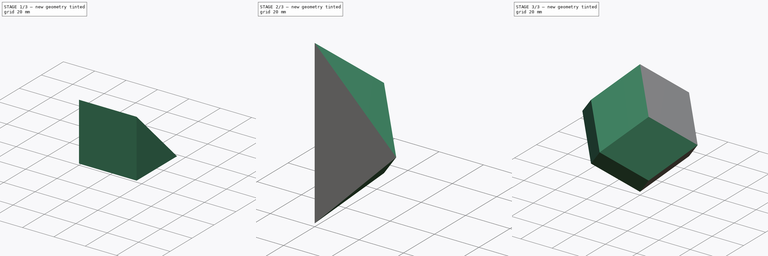
[diagram: build sequence overview — one tinted view per stage of 3, left to right]
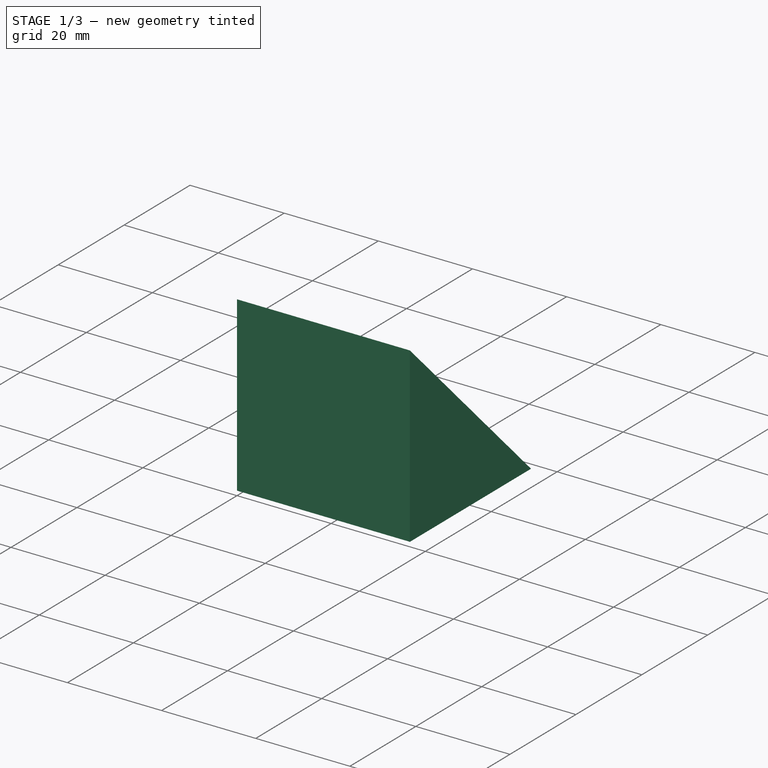
[diagram: stage 1 of 3 — iso view after this stage's code; geometry added in this stage tinted green]
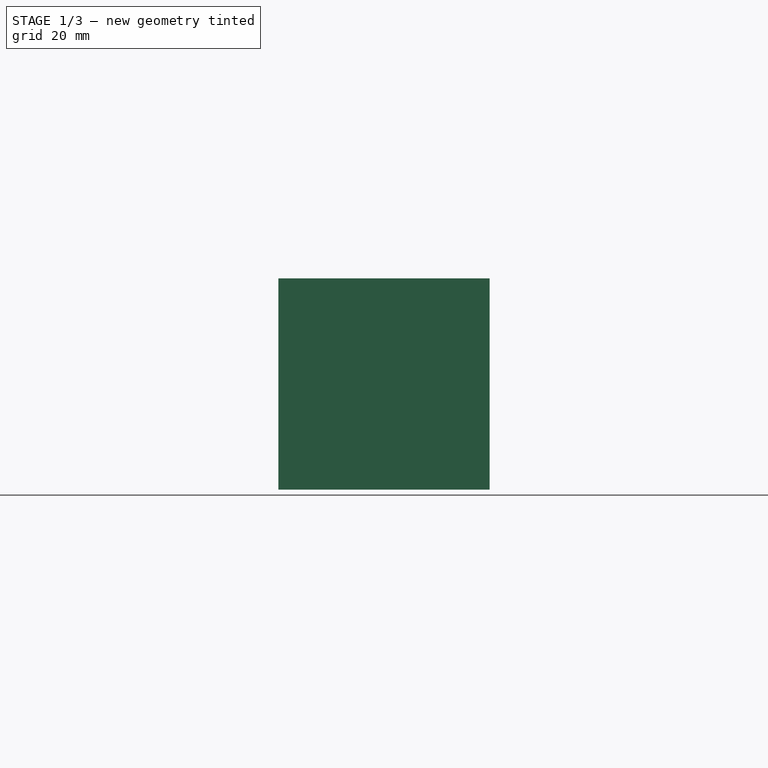
[diagram: stage 1 of 3 — front view after this stage's code; geometry added in this stage tinted green]
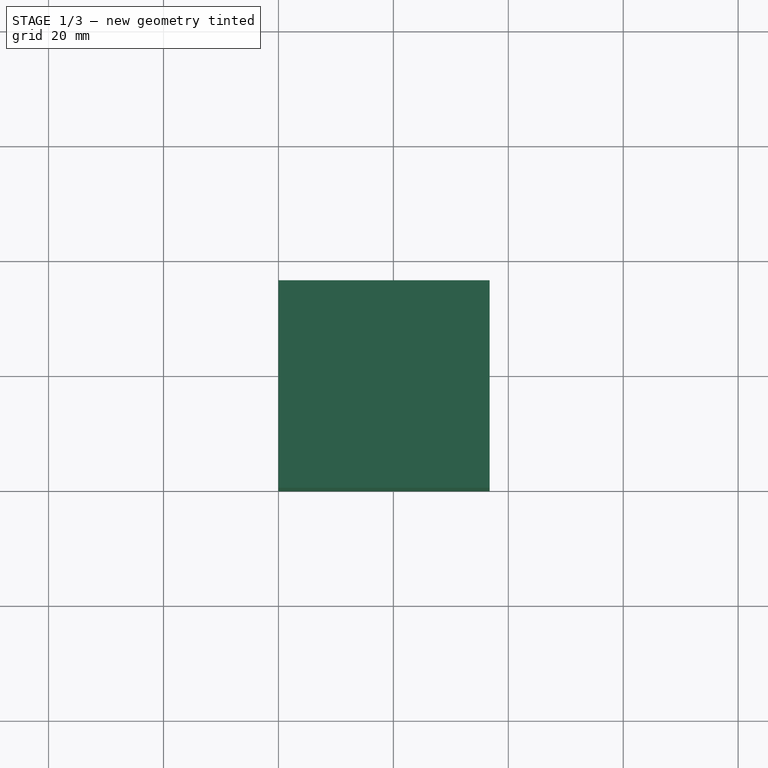
[diagram: stage 1 of 3 — top view after this stage's code; geometry added in this stage tinted green]
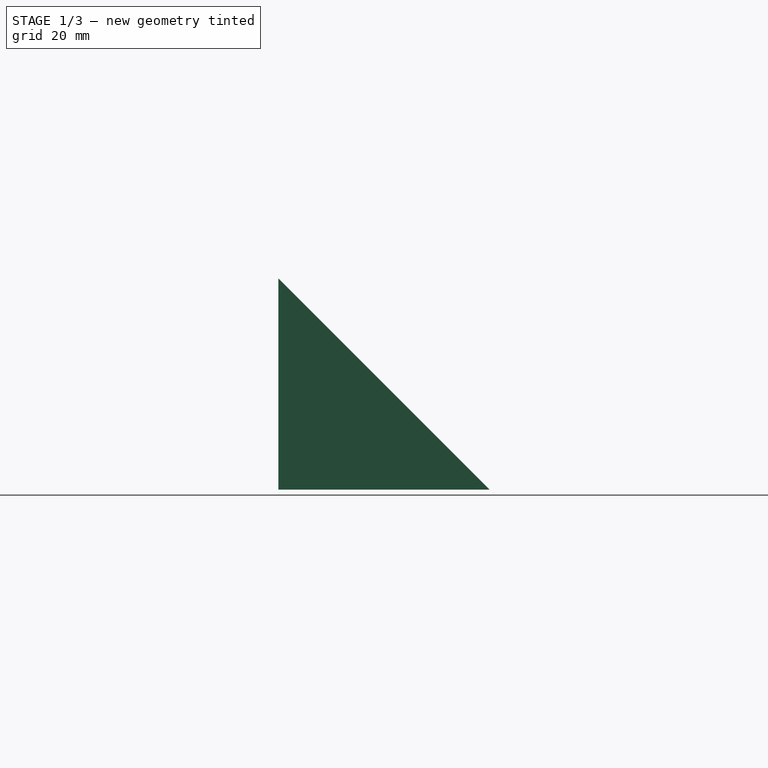
[diagram: stage 1 of 3 — right view after this stage's code; geometry added in this stage tinted green]
FCSTD DOCUMENT  (FreeCAD 1.0R39319 (Git))
Label: rhombic-dodecahedron
License: All rights reserved
LicenseURL: https://en.wikipedia.org/wiki/All_rights_reserved
objects: PartDesign::Plane×4, PartDesign::Pocket×3, PartDesign::Mirrored×3, Sketcher::SketchObject×2, PartDesign::Body×2, PartDesign::AdditiveBox×1, App::VarSet×1
note: 28 computed .brp shape members not serialized (recipe doc carries the construction recipe); baked Part::Feature solids carry a one-line shape summary decoded from their .brp

FEATURE [PartDesign::AdditiveBox] Box
  AttacherType = Attacher::AttachEngine3D
  Height = 36.7423
  Length = 36.7423
  Refine = true
  Suppressed = false
  Width = 36.7423
  expr: Height = <<Rhombus>>.<<Rhombus>>.Constraints.long / sqrt(2)
  expr: Length = <<Rhombus>>.<<Rhombus>>.Constraints.long / sqrt(2)
  expr: Width = <<Rhombus>>.<<Rhombus>>.Constraints.long / sqrt(2)
FEATURE [PartDesign::Plane] DatumPlane  label="DatumPlaneX"
  AttachmentOffset = pos=(0,0,0) rot=(1,0,0;0.785398rad)
  AttachmentSupport = -> [Box]
  Length = 90.9624
  MapMode = 47
  Placement = pos=(36.7423,36.7423,36.7423) rot=(0,0.92388,-0.382683;3.14159rad)
  ResizeMode = 0
  Width = 121.401
FEATURE [PartDesign::Plane] DatumPlane001  label="DatumPlaneY"
  AttachmentOffset = pos=(0,0,0) rot=(-1,0,0;0.785398rad)
  AttachmentSupport = -> [Box]
  Length = 90.9624
  MapMode = 47
  Placement = pos=(36.7423,36.7423,36.7423) rot=(0.678598,-0.678598,-0.281085;2.59356rad)
  ResizeMode = 0
  Width = 121.401
FEATURE [PartDesign::Plane] DatumPlane002  label="DatumPlaneZ"
  AttachmentOffset = pos=(0,0,0) rot=(1,0,0;0.785398rad)
  AttachmentSupport = -> [Box]
  Length = 90.9624
  MapMode = 47
  Placement = pos=(36.7423,36.7423,36.7423) rot=(0.678598,0.281085,-0.678598;2.59356rad)
  ResizeMode = 0
  Width = 121.401
FEATURE [App::VarSet] VarSet
  BasePiece = 30
FEATURE [PartDesign::Pocket] Pocket  label="PocketX"
  BaseFeature = -> Box
  Direction = (0,0.707107,0.707107)
  Length = 25.9808
  Length2 = 5
  Profile = -> DatumPlane
  Refine = true
  Reversed = true
  Suppressed = false
  Type = 0
  expr: Length = <<Rhombus>>.<<Rhombus>>.Constraints.long * 0.5
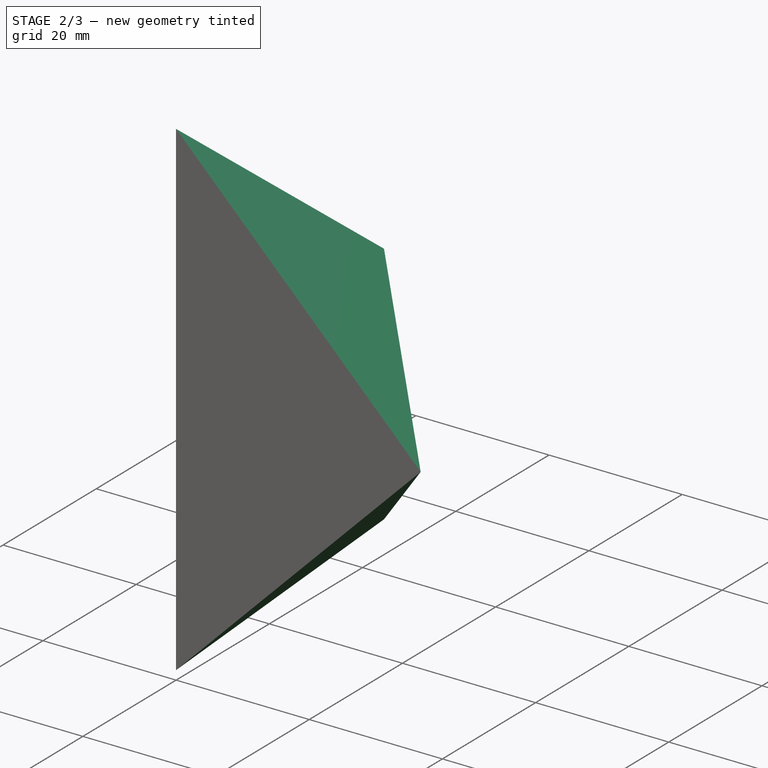
[diagram: stage 2 of 3 — iso view after this stage's code; geometry added in this stage tinted green]
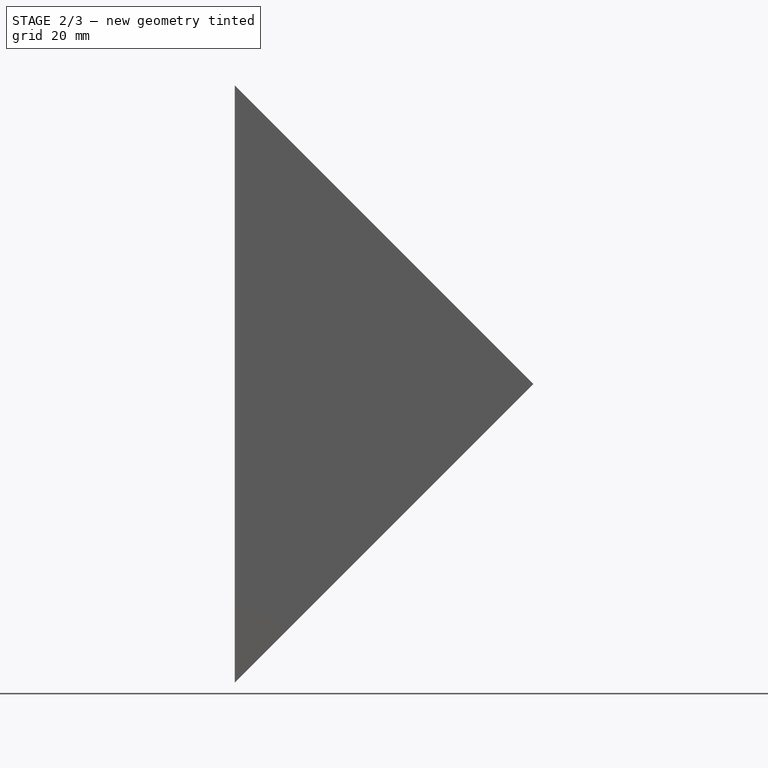
[diagram: stage 2 of 3 — front view after this stage's code; geometry added in this stage tinted green]
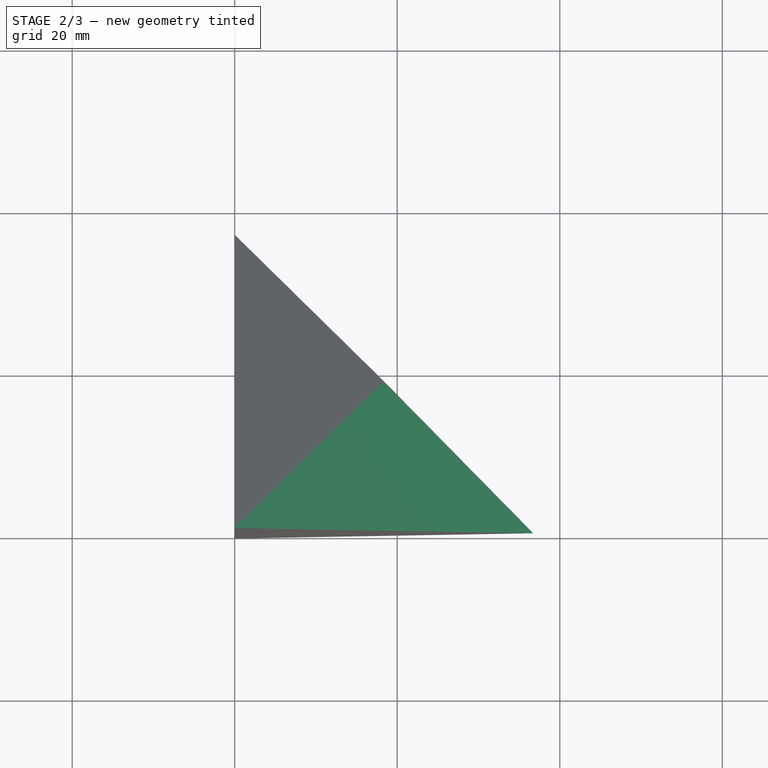
[diagram: stage 2 of 3 — top view after this stage's code; geometry added in this stage tinted green]
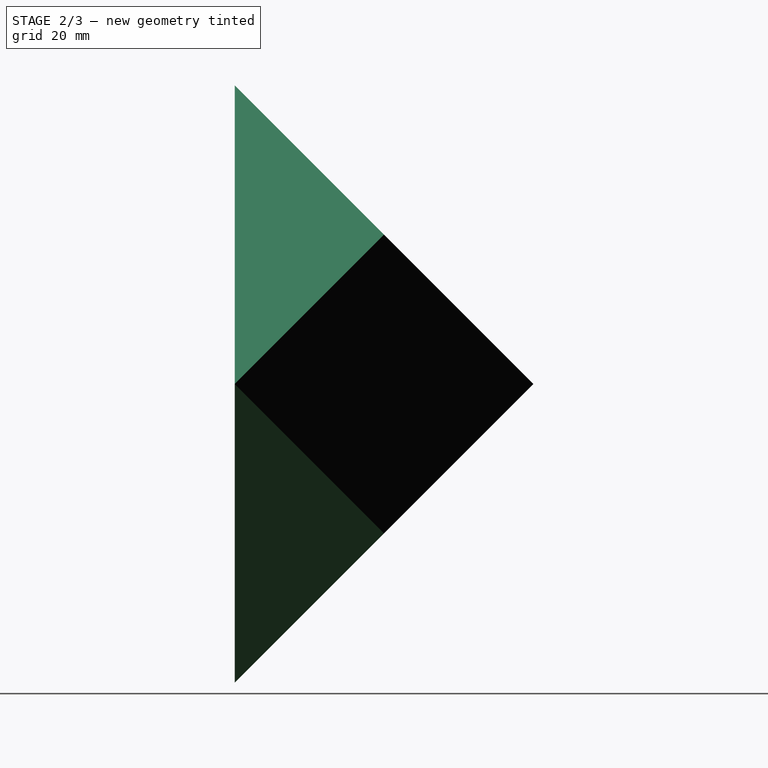
[diagram: stage 2 of 3 — right view after this stage's code; geometry added in this stage tinted green]
FEATURE [PartDesign::Pocket] Pocket001  label="PocketY"
  BaseFeature = -> Pocket
  Direction = (0.707107,2e-16,0.707107)
  Length = 25.9808
  Length2 = 5
  Profile = -> DatumPlane001
  Refine = true
  Reversed = true
  Suppressed = false
  Type = 0
  expr: Length = <<Rhombus>>.<<Rhombus>>.Constraints.long * 0.5
FEATURE [PartDesign::Pocket] Pocket002  label="PocketZ"
  BaseFeature = -> Pocket001
  Direction = (0.707107,0.707107,0)
  Length = 25.9808
  Length2 = 5
  Profile = -> DatumPlane002
  Refine = true
  Reversed = true
  Suppressed = false
  Type = 0
  expr: Length = <<Rhombus>>.<<Rhombus>>.Constraints.long * 0.5
FEATURE [PartDesign::Mirrored] Mirrored  label="MirroredXY"
  BaseFeature = -> Pocket002
  MirrorPlane = -> XY_Plane
  Refine = true
  Suppressed = false
  TransformMode = 1
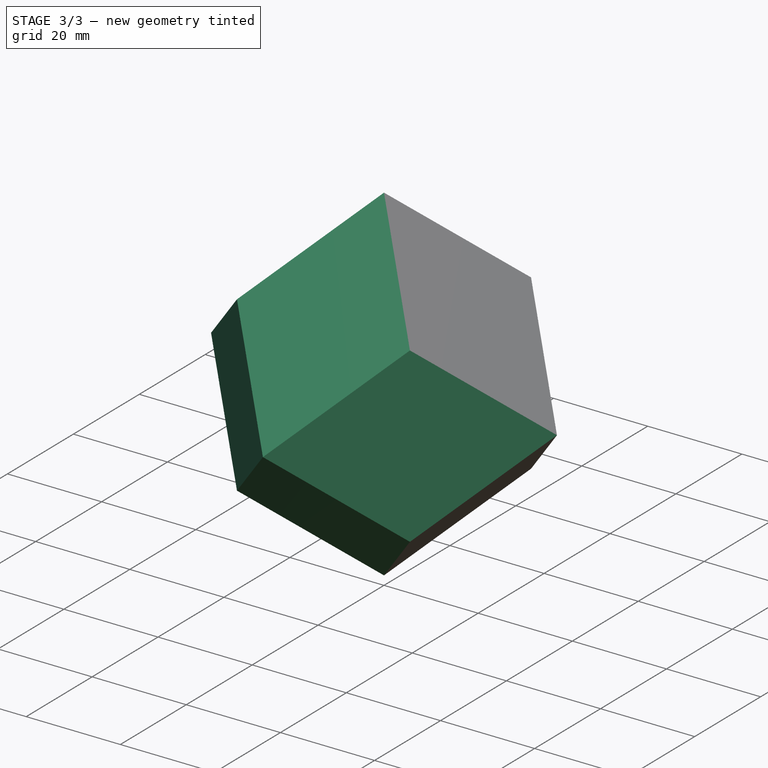
[diagram: stage 3 of 3 — iso view after this stage's code; geometry added in this stage tinted green]
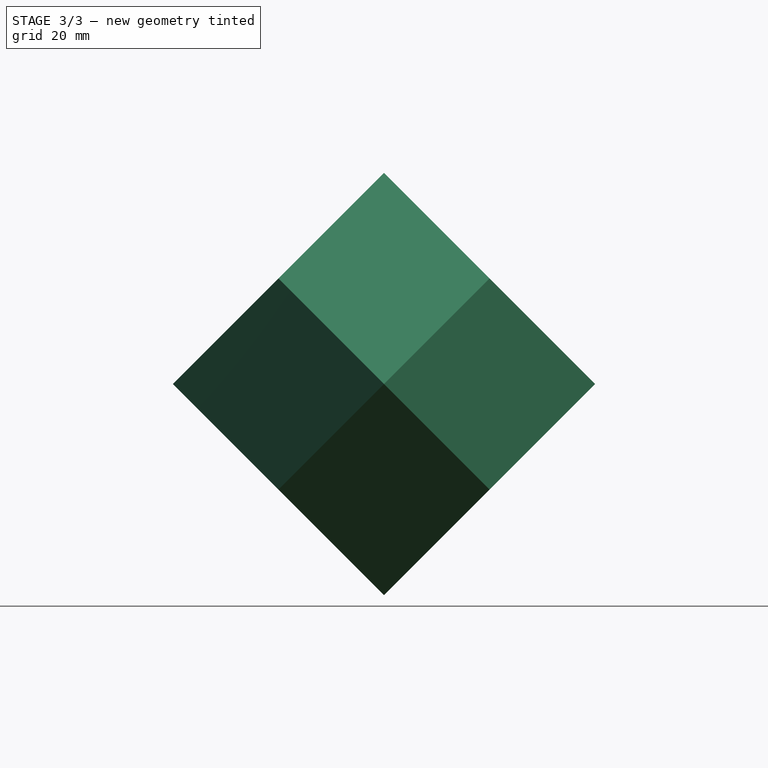
[diagram: stage 3 of 3 — front view after this stage's code; geometry added in this stage tinted green]
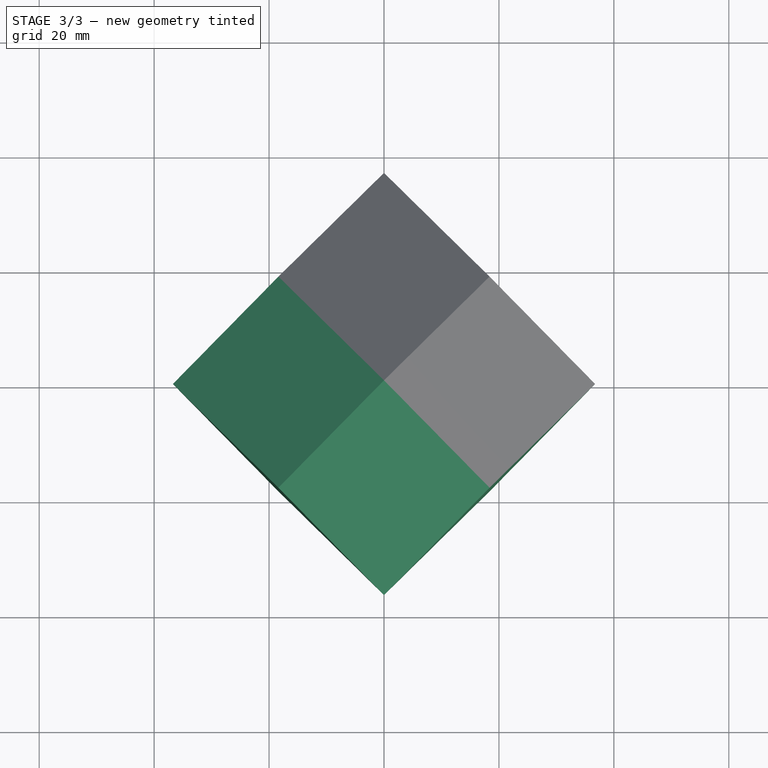
[diagram: stage 3 of 3 — top view after this stage's code; geometry added in this stage tinted green]
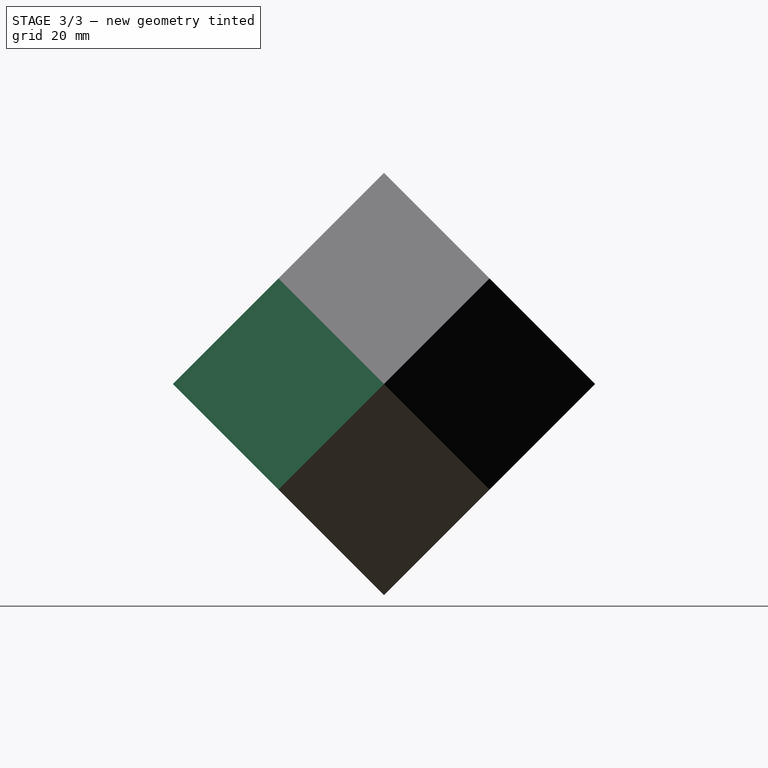
[diagram: stage 3 of 3 — right view after this stage's code; geometry added in this stage tinted green]
FEATURE [PartDesign::Mirrored] Mirrored001  label="MirroredYZ"
  BaseFeature = -> Mirrored
  MirrorPlane = -> YZ_Plane
  Refine = true
  Suppressed = false
  TransformMode = 1
FEATURE [PartDesign::Mirrored] Mirrored002  label="MirroredXZ"
  BaseFeature = -> Mirrored001
  MirrorPlane = -> XZ_Plane
  Refine = true
  Suppressed = false
  TransformMode = 1
FEATURE [Sketcher::SketchObject] Sketch  label="Rhombus"
  ArcFitTolerance = 1e-06
  AttachmentSupport = -> [XY_Plane001]
  FullyConstrained = true
  MakeInternals = false
  MapMode = 5
  expr: .Constraints.Angle = acos(1 / 3)
  expr: .Constraints.BasePiece = VarSet.BasePiece
  sketch-geometry (5):
    g0: LineSegment StartX=0 StartY=25.9808 StartZ=0 EndX=18.3712 EndY=0 EndZ=0
    g1: LineSegment StartX=18.3712 StartY=0 StartZ=0 EndX=0 EndY=-25.9808 EndZ=0
    g2: LineSegment StartX=0 StartY=-25.9808 StartZ=0 EndX=-18.3712 EndY=0 EndZ=0
    g3: LineSegment StartX=-18.3712 StartY=0 StartZ=0 EndX=0 EndY=25.9808 EndZ=0
    g4: LineSegment [constr] StartX=-9.18559 StartY=12.9904 StartZ=0 EndX=15.3093 EndY=-4.33013 EndZ=0
  constraints (16):
    c: Coincident(g0,g1)
    c: Coincident(g1,g2)
    c: PointOnObject(g2,g-1)
    c: Coincident(g2,g3)
    c: Coincident(g3,g0)
    c: Symmetric(g3,g3,g4)
    c: PointOnObject(g4,g1)
    c: Perpendicular(g4,g3)
    c: Parallel(g3,g1)
    c: Parallel(g2,g0)
    c: PointOnObject(g0,g-1)
    c: Distance(g4) = 30  'BasePiece'
    c: Angle(g1,g2) = 1.23096  'Angle'
    c: PointOnObject(g0,g-2)
    c: PointOnObject(g1,g-2)
    c: DistanceY(g1,g0) = 51.9615  'long'
FEATURE [PartDesign::Body] Body001  label="Body"
  AllowCompound = false
  Group = -> [Sketch]
  Origin = -> Origin001
FEATURE [PartDesign::Plane] DatumPlane003  label="Face"
  AttachmentSupport = -> [Mirrored002]
  Length = 90.9624
  MapMode = 5
  Placement = pos=(0,-18.3712,18.3712) rot=(1,0,0;0.785398rad)
  ResizeMode = 0
  Width = 121.401
FEATURE [Sketcher::SketchObject] Sketch001  label="Verif"
  ArcFitTolerance = 1e-06
  AttachmentSupport = -> [DatumPlane003]
  ExternalGeometry = -> [Mirrored002]
  FullyConstrained = true
  MakeInternals = false
  MapMode = 5
  Placement = pos=(0,-18.3712,18.3712) rot=(1,0,0;0.785398rad)
  sketch-geometry (1):
    g0: LineSegment StartX=-9.18559 StartY=12.9904 StartZ=0 EndX=15.3093 EndY=-4.33013 EndZ=0
  constraints (4):
    c: Symmetric(g-6,g-6,g0)
    c: PointOnObject(g0,g-4)
    c: Perpendicular(g0,g-6)
    c: Distance(g0) = 30  'Size'
FEATURE [PartDesign::Body] Body  label="rhombic-dodecahedron"
  AllowCompound = false
  Group = -> [Box,DatumPlane,DatumPlane001,DatumPlane002,Pocket,Pocket001,Pocket002,Mirrored,Mirrored001,Mirrored002,DatumPlane003,Sketch001]
  Origin = -> Origin
  Tip = -> Mirrored002
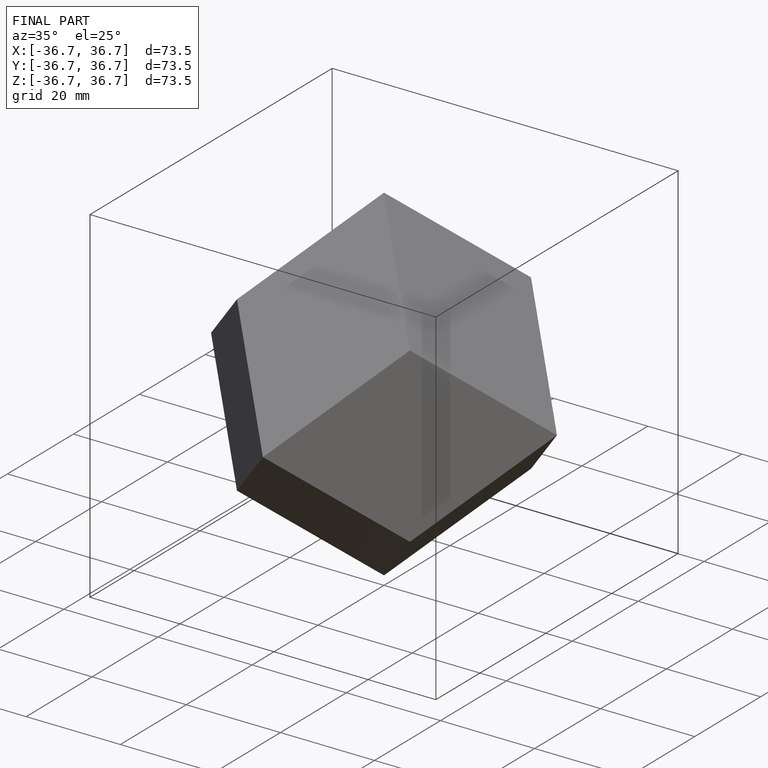
[diagram: finished part — iso view with bounding-box wireframe]
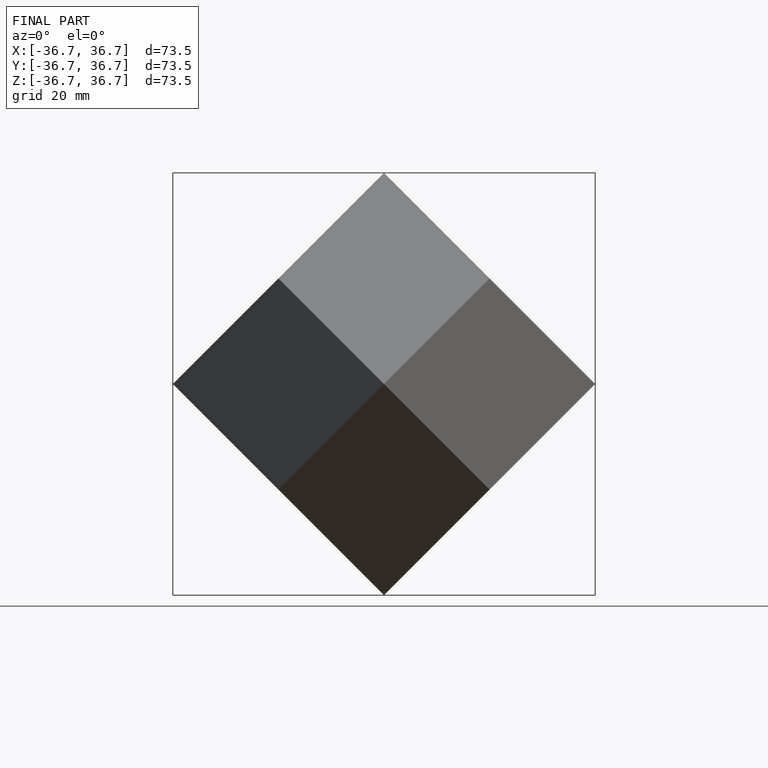
[diagram: finished part — front view with bounding-box wireframe]
